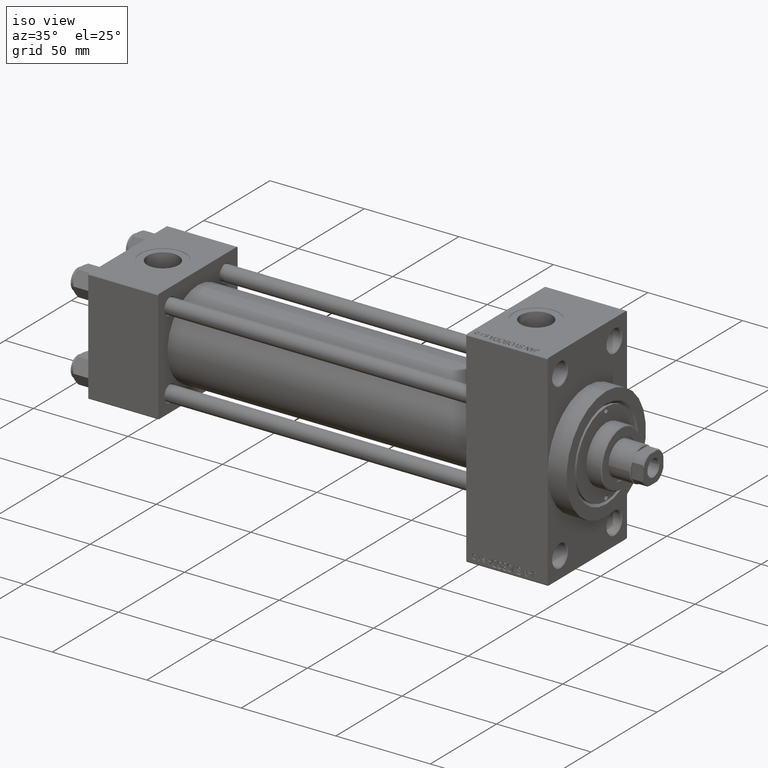
[diagram: clean part render]
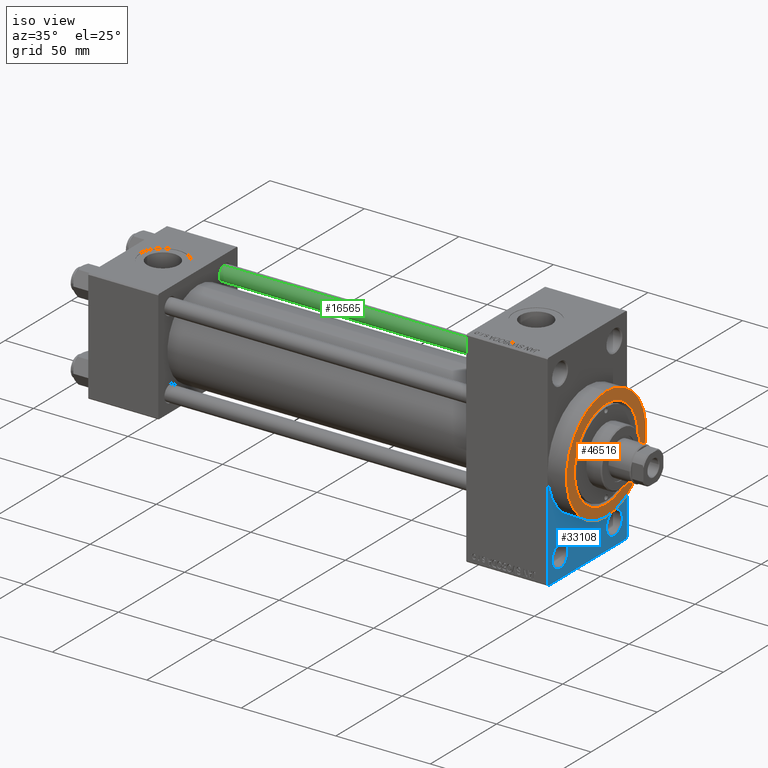
[diagram: same view with three faces highlighted in distinct colors, each labeled with its STEP entity id]
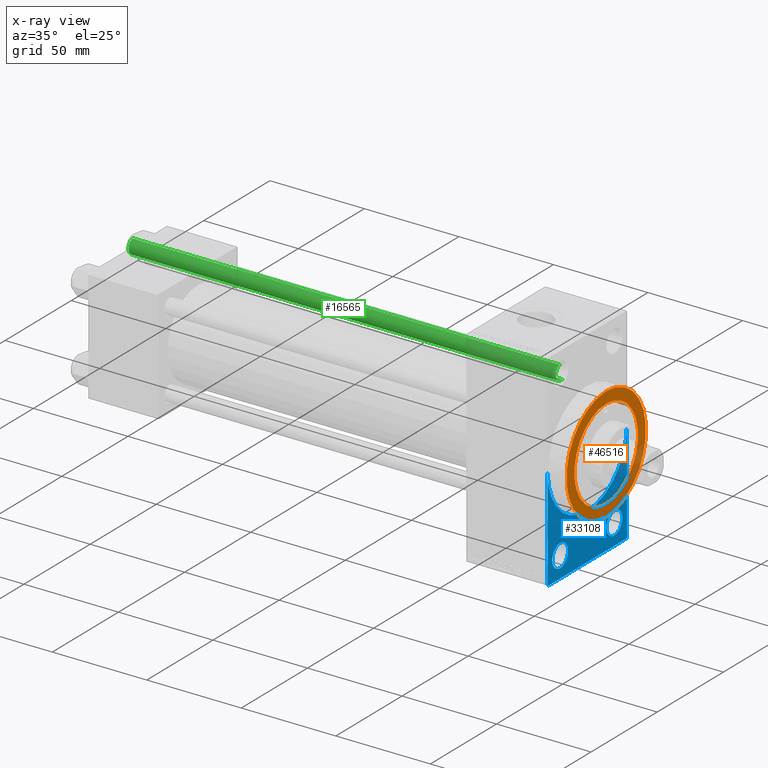
[diagram: x-ray of the same camera — body ghosted, the three highlighted faces saturated]
A machine part, iso view with three faces highlighted in distinct colors.
The next image is the same camera in x-ray (body ghosted, the three faces saturated) — at least one of them is partly hidden behind the body in this view.
Their STEP definitions:

[orange] entity #46516 — the highlighted planar face has unit normal (1, 0, 0).
#39 = CIRCLE ( 'NONE', #42429, 23.99999999999999645 ) ;
#2003 = CARTESIAN_POINT ( 'NONE',  ( 253.0000000000000000, 0.000000000000000000, 0.000000000000000000 ) ) ;
#4152 = AXIS2_PLACEMENT_3D ( 'NONE', #2003, #21034, #47819 ) ;
#5438 = EDGE_CURVE ( 'NONE', #27585, #45079, #22569, .T. ) ;
#9872 = CARTESIAN_POINT ( 'NONE',  ( 253.0000000000000000, 0.000000000000000000, 0.000000000000000000 ) ) ;
#10111 = DIRECTION ( 'NONE',  ( 0.000000000000000000, 0.000000000000000000, -1.000000000000000000 ) ) ;
#10703 = PLANE ( 'NONE',  #24250 ) ;
#13032 = DIRECTION ( 'NONE',  ( 0.000000000000000000, 0.000000000000000000, -1.000000000000000000 ) ) ;
#13609 = EDGE_CURVE ( 'NONE', #45079, #27585, #35638, .T. ) ;
#14312 = VERTEX_POINT ( 'NONE', #19587 ) ;
#14451 = FACE_BOUND ( 'NONE', #31129, .T. ) ;
#15307 = EDGE_CURVE ( 'NONE', #14312, #34072, #38889, .T. ) ;
#17577 = CARTESIAN_POINT ( 'NONE',  ( 253.0000000000000000, 0.000000000000000000, 30.00000000000000000 ) ) ;
#19547 = CARTESIAN_POINT ( 'NONE',  ( 253.0000000000000000, 3.673940397442059178E-15, -30.00000000000000000 ) ) ;
#19587 = CARTESIAN_POINT ( 'NONE',  ( 253.0000000000000000, 2.939152317953647500E-15, 23.99999999999999645 ) ) ;
#21034 = DIRECTION ( 'NONE',  ( 1.000000000000000000, 0.000000000000000000, 0.000000000000000000 ) ) ;
#22055 = AXIS2_PLACEMENT_3D ( 'NONE', #24073, #39827, #13032 ) ;
#22569 = CIRCLE ( 'NONE', #4152, 30.00000000000000000 ) ;
#22677 = DIRECTION ( 'NONE',  ( -1.000000000000000000, -0.000000000000000000, -0.000000000000000000 ) ) ;
#24073 = CARTESIAN_POINT ( 'NONE',  ( 253.0000000000000000, 0.000000000000000000, 0.000000000000000000 ) ) ;
#24250 = AXIS2_PLACEMENT_3D ( 'NONE', #34235, #25990, #41240 ) ;
#25018 = ORIENTED_EDGE ( 'NONE', *, *, #13609, .T. ) ;
#25990 = DIRECTION ( 'NONE',  ( 1.000000000000000000, 0.000000000000000000, 0.000000000000000000 ) ) ;
#26675 = DIRECTION ( 'NONE',  ( 0.000000000000000000, 0.000000000000000000, -1.000000000000000000 ) ) ;
#27585 = VERTEX_POINT ( 'NONE', #19547 ) ;
#29743 = FACE_OUTER_BOUND ( 'NONE', #37663, .T. ) ;
#31129 = EDGE_LOOP ( 'NONE', ( #37000, #46304 ) ) ;
#34072 = VERTEX_POINT ( 'NONE', #49069 ) ;
#34235 = CARTESIAN_POINT ( 'NONE',  ( 253.0000000000000000, 0.000000000000000000, 0.000000000000000000 ) ) ;
#35638 = CIRCLE ( 'NONE', #22055, 30.00000000000000000 ) ;
#37000 = ORIENTED_EDGE ( 'NONE', *, *, #37648, .T. ) ;
#37159 = DIRECTION ( 'NONE',  ( -1.000000000000000000, -0.000000000000000000, -0.000000000000000000 ) ) ;
#37648 = EDGE_CURVE ( 'NONE', #34072, #14312, #39, .T. ) ;
#37663 = EDGE_LOOP ( 'NONE', ( #25018, #38111 ) ) ;
#38111 = ORIENTED_EDGE ( 'NONE', *, *, #5438, .T. ) ;
#38889 = CIRCLE ( 'NONE', #45281, 23.99999999999999645 ) ;
#39827 = DIRECTION ( 'NONE',  ( 1.000000000000000000, 0.000000000000000000, 0.000000000000000000 ) ) ;
#41240 = DIRECTION ( 'NONE',  ( 0.000000000000000000, 0.000000000000000000, -1.000000000000000000 ) ) ;
#42429 = AXIS2_PLACEMENT_3D ( 'NONE', #9872, #37159, #10111 ) ;
#45079 = VERTEX_POINT ( 'NONE', #17577 ) ;
#45281 = AXIS2_PLACEMENT_3D ( 'NONE', #45945, #22677, #26675 ) ;
#45945 = CARTESIAN_POINT ( 'NONE',  ( 253.0000000000000000, 0.000000000000000000, 0.000000000000000000 ) ) ;
#46304 = ORIENTED_EDGE ( 'NONE', *, *, #15307, .T. ) ;
#46516 = ADVANCED_FACE ( 'NONE', ( #14451, #29743 ), #10703, .T. ) ;
#47819 = DIRECTION ( 'NONE',  ( 0.000000000000000000, 0.000000000000000000, -1.000000000000000000 ) ) ;
#49069 = CARTESIAN_POINT ( 'NONE',  ( 253.0000000000000000, 0.000000000000000000, -23.99999999999999645 ) ) ;

[blue] entity #33108 — the highlighted planar face has unit normal (-1, 0, 0).
#332 = EDGE_CURVE ( 'NONE', #26599, #40261, #31001, .T. ) ;
#758 = VECTOR ( 'NONE', #26383, 1000.000000000000000 ) ;
#1233 = DIRECTION ( 'NONE',  ( 0.000000000000000000, 0.7071067811865352493, -0.7071067811865597852 ) ) ;
#1397 = EDGE_CURVE ( 'NONE', #4962, #22707, #2399, .T. ) ;
#1484 = CARTESIAN_POINT ( 'NONE',  ( 243.0000000000000000, -30.00000000000000000, 54.50000000000000000 ) ) ;
#1998 = DIRECTION ( 'NONE',  ( -1.000000000000000000, 0.000000000000000000, -0.000000000000000000 ) ) ;
#2248 = DIRECTION ( 'NONE',  ( 1.000000000000000000, 0.000000000000000000, 0.000000000000000000 ) ) ;
#2368 = DIRECTION ( 'NONE',  ( 0.000000000000000000, 0.000000000000000000, 1.000000000000000000 ) ) ;
#2399 = CIRCLE ( 'NONE', #42394, 5.999999999999977796 ) ;
#2470 = AXIS2_PLACEMENT_3D ( 'NONE', #45587, #4033, #19300 ) ;
#3125 = CARTESIAN_POINT ( 'NONE',  ( 243.0000000000000000, 29.99999999999999645, -53.99999999999999289 ) ) ;
#3397 = EDGE_CURVE ( 'NONE', #7808, #24408, #35397, .T. ) ;
#3792 = AXIS2_PLACEMENT_3D ( 'NONE', #28578, #47843, #39843 ) ;
#3798 = ORIENTED_EDGE ( 'NONE', *, *, #12479, .T. ) ;
#3844 = EDGE_LOOP ( 'NONE', ( #7229, #26995, #16109, #18328, #28944, #32381, #21565 ) ) ;
#4033 = DIRECTION ( 'NONE',  ( -1.000000000000000000, 0.000000000000000000, -0.000000000000000000 ) ) ;
#4910 = VERTEX_POINT ( 'NONE', #21916 ) ;
#4962 = VERTEX_POINT ( 'NONE', #7645 ) ;
#6374 = VECTOR ( 'NONE', #16204, 1000.000000000000000 ) ;
#6880 = VERTEX_POINT ( 'NONE', #3125 ) ;
#6997 = LINE ( 'NONE', #48789, #14921 ) ;
#7229 = ORIENTED_EDGE ( 'NONE', *, *, #18932, .T. ) ;
#7645 = CARTESIAN_POINT ( 'NONE',  ( 243.0000000000000000, -20.50000000000000000, -49.49999999999997158 ) ) ;
#7727 = VECTOR ( 'NONE', #11756, 1000.000000000000000 ) ;
#7808 = VERTEX_POINT ( 'NONE', #13656 ) ;
#7929 = CARTESIAN_POINT ( 'NONE',  ( 243.0000000000000000, -20.50000000000000000, -37.50000000000002132 ) ) ;
#9571 = DIRECTION ( 'NONE',  ( -0.000000000000000000, 0.000000000000000000, 1.000000000000000000 ) ) ;
#11081 = LINE ( 'NONE', #49393, #758 ) ;
#11099 = VERTEX_POINT ( 'NONE', #23162 ) ;
#11208 = ORIENTED_EDGE ( 'NONE', *, *, #38094, .T. ) ;
#11401 = AXIS2_PLACEMENT_3D ( 'NONE', #25909, #22410, #2368 ) ;
#11756 = DIRECTION ( 'NONE',  ( 0.000000000000000000, 0.000000000000000000, -1.000000000000000000 ) ) ;
#12479 = EDGE_CURVE ( 'NONE', #22707, #4962, #30824, .T. ) ;
#13656 = CARTESIAN_POINT ( 'NONE',  ( 243.0000000000000000, 20.50000000000000000, -49.49999999999997158 ) ) ;
#14233 = AXIS2_PLACEMENT_3D ( 'NONE', #48061, #2248, #17525 ) ;
#14286 = AXIS2_PLACEMENT_3D ( 'NONE', #17336, #24872, #9571 ) ;
#14491 = DIRECTION ( 'NONE',  ( 0.000000000000000000, 0.000000000000000000, -1.000000000000000000 ) ) ;
#14921 = VECTOR ( 'NONE', #14491, 1000.000000000000000 ) ;
#16109 = ORIENTED_EDGE ( 'NONE', *, *, #332, .F. ) ;
#16204 = DIRECTION ( 'NONE',  ( 0.000000000000000000, -1.000000000000000000, -1.156482317317871478E-16 ) ) ;
#17336 = CARTESIAN_POINT ( 'NONE',  ( 243.0000000000000000, 0.000000000000000000, 0.000000000000000000 ) ) ;
#17470 = EDGE_CURVE ( 'NONE', #11099, #20748, #24498, .T. ) ;
#17525 = DIRECTION ( 'NONE',  ( 0.000000000000000000, 0.000000000000000000, -1.000000000000000000 ) ) ;
#18328 = ORIENTED_EDGE ( 'NONE', *, *, #30975, .T. ) ;
#18932 = EDGE_CURVE ( 'NONE', #11099, #21828, #23299, .T. ) ;
#19169 = VECTOR ( 'NONE', #1233, 1000.000000000000000 ) ;
#19300 = DIRECTION ( 'NONE',  ( 0.000000000000000000, 0.000000000000000000, 1.000000000000000000 ) ) ;
#19563 = EDGE_CURVE ( 'NONE', #4910, #6880, #6997, .T. ) ;
#19704 = CARTESIAN_POINT ( 'NONE',  ( 243.0000000000000000, -30.00000000000000000, -54.00000000000001421 ) ) ;
#20419 = AXIS2_PLACEMENT_3D ( 'NONE', #23855, #46880, #31116 ) ;
#20681 = CARTESIAN_POINT ( 'NONE',  ( 243.0000000000000000, 3.673940397442059178E-15, -30.00000000000000000 ) ) ;
#20748 = VERTEX_POINT ( 'NONE', #20681 ) ;
#21565 = ORIENTED_EDGE ( 'NONE', *, *, #17470, .F. ) ;
#21828 = VERTEX_POINT ( 'NONE', #19704 ) ;
#21916 = CARTESIAN_POINT ( 'NONE',  ( 243.0000000000000000, 30.00000000000000000, 0.000000000000000000 ) ) ;
#22410 = DIRECTION ( 'NONE',  ( -1.000000000000000000, 0.000000000000000000, -0.000000000000000000 ) ) ;
#22707 = VERTEX_POINT ( 'NONE', #7929 ) ;
#22998 = EDGE_CURVE ( 'NONE', #20748, #4910, #37456, .T. ) ;
#23162 = CARTESIAN_POINT ( 'NONE',  ( 243.0000000000000000, -30.00000000000000000, 0.000000000000000000 ) ) ;
#23299 = LINE ( 'NONE', #1484, #7727 ) ;
#23855 = CARTESIAN_POINT ( 'NONE',  ( 243.0000000000000000, -20.50000000000000000, -43.50000000000000000 ) ) ;
#24408 = VERTEX_POINT ( 'NONE', #30237 ) ;
#24498 = CIRCLE ( 'NONE', #3792, 30.00000000000000000 ) ;
#24690 = EDGE_LOOP ( 'NONE', ( #44439, #3798 ) ) ;
#24804 = DIRECTION ( 'NONE',  ( 0.000000000000000000, 0.000000000000000000, 1.000000000000000000 ) ) ;
#24872 = DIRECTION ( 'NONE',  ( -1.000000000000000000, 0.000000000000000000, -0.000000000000000000 ) ) ;
#25354 = FACE_OUTER_BOUND ( 'NONE', #3844, .T. ) ;
#25909 = CARTESIAN_POINT ( 'NONE',  ( 243.0000000000000000, 20.50000000000000000, -43.50000000000000000 ) ) ;
#26383 = DIRECTION ( 'NONE',  ( -0.000000000000000000, 0.7071067811865672237, 0.7071067811865279218 ) ) ;
#26405 = CARTESIAN_POINT ( 'NONE',  ( 243.0000000000000000, -29.50000000000002842, -54.50000000000000000 ) ) ;
#26599 = VERTEX_POINT ( 'NONE', #37338 ) ;
#26995 = ORIENTED_EDGE ( 'NONE', *, *, #35172, .T. ) ;
#28052 = CARTESIAN_POINT ( 'NONE',  ( 243.0000000000000000, -20.50000000000000000, -43.50000000000000000 ) ) ;
#28578 = CARTESIAN_POINT ( 'NONE',  ( 243.0000000000000000, 0.000000000000000000, 0.000000000000000000 ) ) ;
#28944 = ORIENTED_EDGE ( 'NONE', *, *, #19563, .F. ) ;
#30237 = CARTESIAN_POINT ( 'NONE',  ( 243.0000000000000000, 20.50000000000000000, -37.50000000000002132 ) ) ;
#30824 = CIRCLE ( 'NONE', #20419, 5.999999999999977796 ) ;
#30975 = EDGE_CURVE ( 'NONE', #26599, #6880, #11081, .T. ) ;
#31001 = LINE ( 'NONE', #46263, #6374 ) ;
#31116 = DIRECTION ( 'NONE',  ( 0.000000000000000000, 0.000000000000000000, 1.000000000000000000 ) ) ;
#32380 = FACE_BOUND ( 'NONE', #24690, .T. ) ;
#32381 = ORIENTED_EDGE ( 'NONE', *, *, #22998, .F. ) ;
#32536 = LINE ( 'NONE', #35787, #19169 ) ;
#33108 = ADVANCED_FACE ( 'NONE', ( #32380, #47637, #25354 ), #43868, .F. ) ;
#35172 = EDGE_CURVE ( 'NONE', #21828, #40261, #32536, .T. ) ;
#35397 = CIRCLE ( 'NONE', #11401, 5.999999999999977796 ) ;
#35787 = CARTESIAN_POINT ( 'NONE',  ( 243.0000000000000000, -29.50000000000002842, -54.50000000000000000 ) ) ;
#35837 = EDGE_LOOP ( 'NONE', ( #36311, #11208 ) ) ;
#36311 = ORIENTED_EDGE ( 'NONE', *, *, #3397, .T. ) ;
#37338 = CARTESIAN_POINT ( 'NONE',  ( 243.0000000000000000, 29.49999999999996803, -54.49999999999999289 ) ) ;
#37456 = CIRCLE ( 'NONE', #14233, 30.00000000000000000 ) ;
#38094 = EDGE_CURVE ( 'NONE', #24408, #7808, #46477, .T. ) ;
#39843 = DIRECTION ( 'NONE',  ( 0.000000000000000000, 0.000000000000000000, -1.000000000000000000 ) ) ;
#40261 = VERTEX_POINT ( 'NONE', #26405 ) ;
#42394 = AXIS2_PLACEMENT_3D ( 'NONE', #28052, #1998, #24804 ) ;
#43868 = PLANE ( 'NONE',  #14286 ) ;
#44439 = ORIENTED_EDGE ( 'NONE', *, *, #1397, .T. ) ;
#45587 = CARTESIAN_POINT ( 'NONE',  ( 243.0000000000000000, 20.50000000000000000, -43.50000000000000000 ) ) ;
#46263 = CARTESIAN_POINT ( 'NONE',  ( 243.0000000000000000, 29.99999999999999645, -54.49999999999999289 ) ) ;
#46477 = CIRCLE ( 'NONE', #2470, 5.999999999999977796 ) ;
#46880 = DIRECTION ( 'NONE',  ( -1.000000000000000000, 0.000000000000000000, -0.000000000000000000 ) ) ;
#47637 = FACE_BOUND ( 'NONE', #35837, .T. ) ;
#47843 = DIRECTION ( 'NONE',  ( 1.000000000000000000, 0.000000000000000000, 0.000000000000000000 ) ) ;
#48061 = CARTESIAN_POINT ( 'NONE',  ( 243.0000000000000000, 0.000000000000000000, 0.000000000000000000 ) ) ;
#48789 = CARTESIAN_POINT ( 'NONE',  ( 243.0000000000000000, 29.99999999999999645, 54.49999999999999289 ) ) ;
#49393 = CARTESIAN_POINT ( 'NONE',  ( 243.0000000000000000, 29.99999999999999645, -53.99999999999999289 ) ) ;

[green] entity #16565 — the highlighted cylindrical surface (edge-blend (fillet) strip) has radius 4 mm, axis along (-1, -0, 0).
#1015 = CARTESIAN_POINT ( 'NONE',  ( 4.000000000000000000, 4.898587196589411843E-16, 226.5000000000001421 ) ) ;
#2601 = VERTEX_POINT ( 'NONE', #1015 ) ;
#3248 = AXIS2_PLACEMENT_3D ( 'NONE', #14035, #40821, #29827 ) ;
#3488 = CARTESIAN_POINT ( 'NONE',  ( 4.000000000000000000, 4.898587196589411843E-16, 0.5000000000002224887 ) ) ;
#6028 = CARTESIAN_POINT ( 'NONE',  ( 0.000000000000000000, 0.000000000000000000, 227.0000000000000000 ) ) ;
#6141 = VERTEX_POINT ( 'NONE', #31952 ) ;
#6850 = LINE ( 'NONE', #43907, #36440 ) ;
#10178 = EDGE_LOOP ( 'NONE', ( #15676, #15541, #45205, #38478 ) ) ;
#10574 = DIRECTION ( 'NONE',  ( -0.000000000000000000, -0.000000000000000000, -1.000000000000000000 ) ) ;
#10947 = CARTESIAN_POINT ( 'NONE',  ( 0.000000000000000000, 0.000000000000000000, 0.5000000000002224887 ) ) ;
#12193 = EDGE_CURVE ( 'NONE', #35202, #6141, #6850, .T. ) ;
#13285 = CYLINDRICAL_SURFACE ( 'NONE', #29344, 4.000000000000000000 ) ;
#14035 = CARTESIAN_POINT ( 'NONE',  ( 0.000000000000000000, 0.000000000000000000, 226.5000000000001421 ) ) ;
#15541 = ORIENTED_EDGE ( 'NONE', *, *, #28160, .T. ) ;
#15676 = ORIENTED_EDGE ( 'NONE', *, *, #41982, .F. ) ;
#16034 = CIRCLE ( 'NONE', #3248, 4.000000000000000000 ) ;
#16565 = ADVANCED_FACE ( 'NONE', ( #43335 ), #13285, .T. ) ;
#16997 = CARTESIAN_POINT ( 'NONE',  ( -4.000000000000000000, 0.000000000000000000, 226.5000000000001421 ) ) ;
#17115 = CARTESIAN_POINT ( 'NONE',  ( 4.000000000000000000, 4.898587196589411843E-16, 227.0000000000000000 ) ) ;
#18599 = VECTOR ( 'NONE', #10574, 1000.000000000000000 ) ;
#21697 = EDGE_CURVE ( 'NONE', #6141, #32662, #49387, .T. ) ;
#25741 = DIRECTION ( 'NONE',  ( 1.000000000000000000, 0.000000000000000000, 0.000000000000000000 ) ) ;
#28160 = EDGE_CURVE ( 'NONE', #2601, #35202, #16034, .T. ) ;
#29344 = AXIS2_PLACEMENT_3D ( 'NONE', #6028, #47837, #44075 ) ;
#29827 = DIRECTION ( 'NONE',  ( 1.000000000000000000, 0.000000000000000000, 0.000000000000000000 ) ) ;
#31952 = CARTESIAN_POINT ( 'NONE',  ( -4.000000000000000000, 0.000000000000000000, 0.5000000000002224887 ) ) ;
#32662 = VERTEX_POINT ( 'NONE', #3488 ) ;
#35202 = VERTEX_POINT ( 'NONE', #16997 ) ;
#35809 = AXIS2_PLACEMENT_3D ( 'NONE', #10947, #40268, #25741 ) ;
#36440 = VECTOR ( 'NONE', #44638, 1000.000000000000000 ) ;
#38478 = ORIENTED_EDGE ( 'NONE', *, *, #21697, .T. ) ;
#40268 = DIRECTION ( 'NONE',  ( -0.000000000000000000, -0.000000000000000000, 1.000000000000000000 ) ) ;
#40821 = DIRECTION ( 'NONE',  ( 0.000000000000000000, 0.000000000000000000, -1.000000000000000000 ) ) ;
#41982 = EDGE_CURVE ( 'NONE', #2601, #32662, #47661, .T. ) ;
#43335 = FACE_OUTER_BOUND ( 'NONE', #10178, .T. ) ;
#43907 = CARTESIAN_POINT ( 'NONE',  ( -4.000000000000000000, 0.000000000000000000, 227.0000000000000000 ) ) ;
#44075 = DIRECTION ( 'NONE',  ( -1.000000000000000000, 0.000000000000000000, 0.000000000000000000 ) ) ;
#44638 = DIRECTION ( 'NONE',  ( -0.000000000000000000, -0.000000000000000000, -1.000000000000000000 ) ) ;
#45205 = ORIENTED_EDGE ( 'NONE', *, *, #12193, .T. ) ;
#47661 = LINE ( 'NONE', #17115, #18599 ) ;
#47837 = DIRECTION ( 'NONE',  ( -0.000000000000000000, -0.000000000000000000, -1.000000000000000000 ) ) ;
#49387 = CIRCLE ( 'NONE', #35809, 4.000000000000000000 ) ;